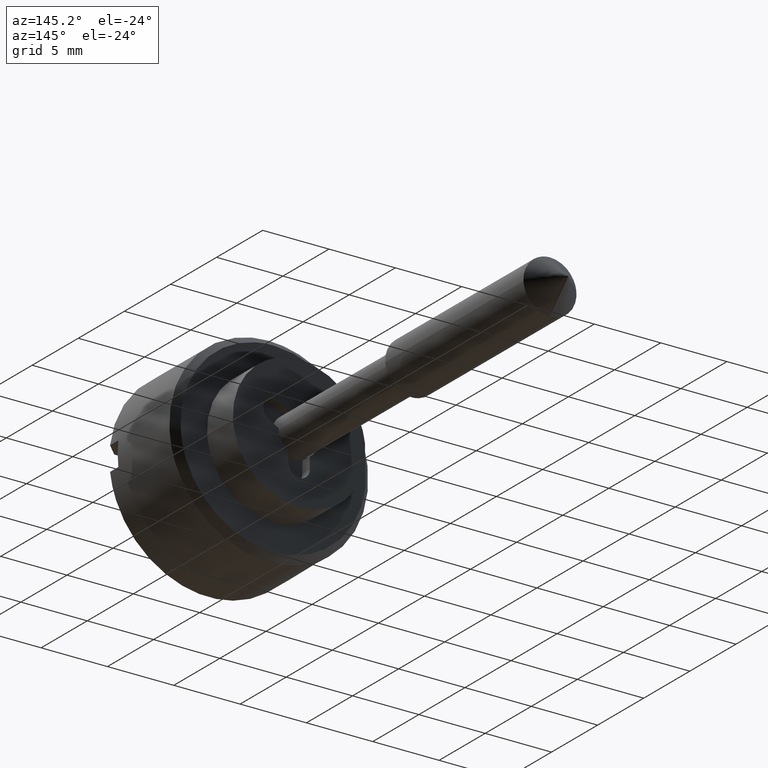
[diagram: clean part render]
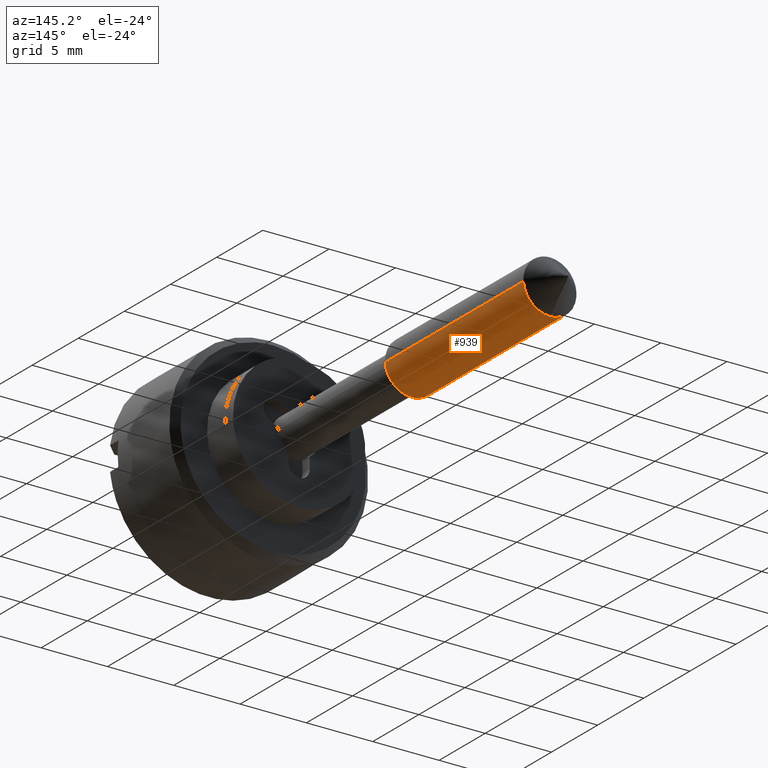
[diagram: same view with one face highlighted and labeled with its STEP entity id]
A machine part, auxiliary view. The second image highlights one B-rep face of the part: STEP entity #939.
In plain terms, the highlighted face is a freeform B-spline surface patch.
Its self-contained STEP definition (entity closure, byte-faithful):
#837=CARTESIAN_POINT('',(38.374900000000011,1.986019052727332,0.236068469313517));
#838=CARTESIAN_POINT('',(38.374900000000011,1.992775230897211,0.179229457275955));
#839=CARTESIAN_POINT('',(38.374900000000011,1.996269596843733,0.122097079069714));
#840=CARTESIAN_POINT('',(38.374900000000011,2.118366675913447,-1.874172517774020));
#841=CARTESIAN_POINT('',(38.374900000000011,0.122097079069714,-1.996269596843733));
#842=CARTESIAN_POINT('',(38.374900000000011,-1.874172517774020,-2.118366675913447));
#843=CARTESIAN_POINT('',(38.374900000000011,-1.996269596843733,-0.122097079069714));
#844=CARTESIAN_POINT('',(22.615524999999995,1.986019052727332,0.236068469313517));
#845=CARTESIAN_POINT('',(22.615524999999995,1.992775230897211,0.179229457275955));
#846=CARTESIAN_POINT('',(22.615525000000002,1.996269596843733,0.122097079069714));
#847=CARTESIAN_POINT('',(22.615524999999991,2.118366675913447,-1.874172517774020));
#848=CARTESIAN_POINT('',(22.615525000000002,0.122097079069714,-1.996269596843733));
#849=CARTESIAN_POINT('',(22.615524999999991,-1.874172517774020,-2.118366675913447));
#850=CARTESIAN_POINT('',(22.615525000000002,-1.996269596843733,-0.122097079069714));
#858=(BOUNDED_SURFACE()B_SPLINE_SURFACE(2,1,((#837,#844),(#838,#845),(#839,#846),(#840,#847),(#841,#848),(#842,#849),(#843,#850)),.UNSPECIFIED.,.F.,.F.,.U.)B_SPLINE_SURFACE_WITH_KNOTS((3,2,2,3),(2,2),(0.0,0.132548339959391,3.446256838944149,6.759965337928908),(0.0,15.759375000000020),.UNSPECIFIED.)GEOMETRIC_REPRESENTATION_ITEM()RATIONAL_B_SPLINE_SURFACE(((0.977505800795127,0.977505800795127),(0.988284271247462,0.988284271247462),(1.0,1.0),(0.707106781186548,0.707106781186548),(1.0,1.0),(0.707106781186548,0.707106781186548),(1.0,1.0)))REPRESENTATION_ITEM('')SURFACE());
#859=CARTESIAN_POINT('',(37.999899999999997,1.986019052726245,0.236068469322671));
#860=VERTEX_POINT('',#859);
#861=CARTESIAN_POINT('',(37.999899999999997,0.0,-2.0));
#862=VERTEX_POINT('',#861);
#863=CARTESIAN_POINT('',(37.999900000000004,1.986019052726245,0.236068469322671));
#864=CARTESIAN_POINT('',(37.999900000000004,2.000000000000000,0.118448239313071));
#865=CARTESIAN_POINT('',(37.999899999999997,2.0,0.0));
#866=CARTESIAN_POINT('',(37.999900000000004,2.000000000000000,-2.000000000000000));
#867=CARTESIAN_POINT('',(37.999899999999997,0.0,-2.0));
#875=(BOUNDED_CURVE()B_SPLINE_CURVE(2,(#863,#864,#865,#866,#867),.UNSPECIFIED.,.F.,.U.)B_SPLINE_CURVE_WITH_KNOTS((3,2,3),(0.459124947028173,0.500000000000000,1.0),.UNSPECIFIED.)CURVE()GEOMETRIC_REPRESENTATION_ITEM()RATIONAL_B_SPLINE_CURVE((0.956026754184832,0.976055948331822,1.0,0.707106781186548,1.0))REPRESENTATION_ITEM(''));
#876=EDGE_CURVE('',#860,#862,#875,.T.);
#877=ORIENTED_EDGE('',*,*,#876,.T.);
#878=CARTESIAN_POINT('',(37.999899999999997,-1.996269596837640,-0.122097079169345));
#879=VERTEX_POINT('',#878);
#880=CARTESIAN_POINT('',(37.999899999999997,0.0,-2.0));
#881=CARTESIAN_POINT('',(37.999900000000004,-1.881412133623241,-2.000000000000000));
#882=CARTESIAN_POINT('',(37.999900000000011,-1.996269596837641,-0.122097079169345));
#890=(BOUNDED_CURVE()B_SPLINE_CURVE(2,(#880,#881,#882),.UNSPECIFIED.,.F.,.U.)B_SPLINE_CURVE_WITH_KNOTS((3,3),(0.0,0.478665924449490),.UNSPECIFIED.)CURVE()GEOMETRIC_REPRESENTATION_ITEM()RATIONAL_B_SPLINE_CURVE((1.0,0.719603993303344,0.976072041636289))REPRESENTATION_ITEM(''));
#891=EDGE_CURVE('',#862,#879,#890,.T.);
#892=ORIENTED_EDGE('',*,*,#891,.T.);
#893=CARTESIAN_POINT('',(22.999900000000000,-1.996269596837640,-0.122097079169345));
#894=VERTEX_POINT('',#893);
#895=CARTESIAN_POINT('',(37.999899999999997,-1.996269596837640,-0.122097079169345));
#896=CARTESIAN_POINT('',(22.999900000000000,-1.996269596837640,-0.122097079169345));
#897=QUASI_UNIFORM_CURVE('',1,(#895,#896),.UNSPECIFIED.,.F.,.U.);
#898=EDGE_CURVE('',#879,#894,#897,.T.);
#899=ORIENTED_EDGE('',*,*,#898,.T.);
#900=CARTESIAN_POINT('',(22.999900000000000,0.0,-2.0));
#901=VERTEX_POINT('',#900);
#902=CARTESIAN_POINT('',(22.999900000000000,0.0,-2.0));
#903=CARTESIAN_POINT('',(22.999900000000011,-1.881412133623244,-1.999999999999999));
#904=CARTESIAN_POINT('',(22.999900000000004,-1.996269596837640,-0.122097079169345));
#912=(BOUNDED_CURVE()B_SPLINE_CURVE(2,(#902,#903,#904),.UNSPECIFIED.,.F.,.U.)B_SPLINE_CURVE_WITH_KNOTS((3,3),(0.500000000000000,0.739332962224745),.UNSPECIFIED.)CURVE()GEOMETRIC_REPRESENTATION_ITEM()RATIONAL_B_SPLINE_CURVE((1.0,0.719603993303344,0.976072041636290))REPRESENTATION_ITEM(''));
#913=EDGE_CURVE('',#901,#894,#912,.T.);
#914=ORIENTED_EDGE('',*,*,#913,.F.);
#915=CARTESIAN_POINT('',(22.999900000000000,1.986019052726245,0.236068469322671));
#916=VERTEX_POINT('',#915);
#917=CARTESIAN_POINT('',(22.999900000000000,1.986019052726245,0.236068469322671));
#918=CARTESIAN_POINT('',(22.999900000000004,2.000000000000000,0.118448239313071));
#919=CARTESIAN_POINT('',(22.999900000000000,2.0,0.0));
#920=CARTESIAN_POINT('',(22.999900000000007,2.000000000000000,-2.000000000000000));
#921=CARTESIAN_POINT('',(22.999900000000000,0.0,-2.0));
#929=(BOUNDED_CURVE()B_SPLINE_CURVE(2,(#917,#918,#919,#920,#921),.UNSPECIFIED.,.F.,.U.)B_SPLINE_CURVE_WITH_KNOTS((3,2,3),(0.229562473514086,0.250000000000000,0.500000000000000),.UNSPECIFIED.)CURVE()GEOMETRIC_REPRESENTATION_ITEM()RATIONAL_B_SPLINE_CURVE((0.956026754184832,0.976055948331822,1.0,0.707106781186548,1.0))REPRESENTATION_ITEM(''));
#930=EDGE_CURVE('',#916,#901,#929,.T.);
#931=ORIENTED_EDGE('',*,*,#930,.F.);
#932=CARTESIAN_POINT('',(37.999899999999997,1.986019052726245,0.236068469322671));
#933=CARTESIAN_POINT('',(22.999900000000000,1.986019052726245,0.236068469322671));
#934=QUASI_UNIFORM_CURVE('',1,(#932,#933),.UNSPECIFIED.,.F.,.U.);
#935=EDGE_CURVE('',#860,#916,#934,.T.);
#936=ORIENTED_EDGE('',*,*,#935,.F.);
#937=EDGE_LOOP('',(#877,#892,#899,#914,#931,#936));
#938=FACE_OUTER_BOUND('',#937,.T.);
#939=ADVANCED_FACE('',(#938),#858,.T.);